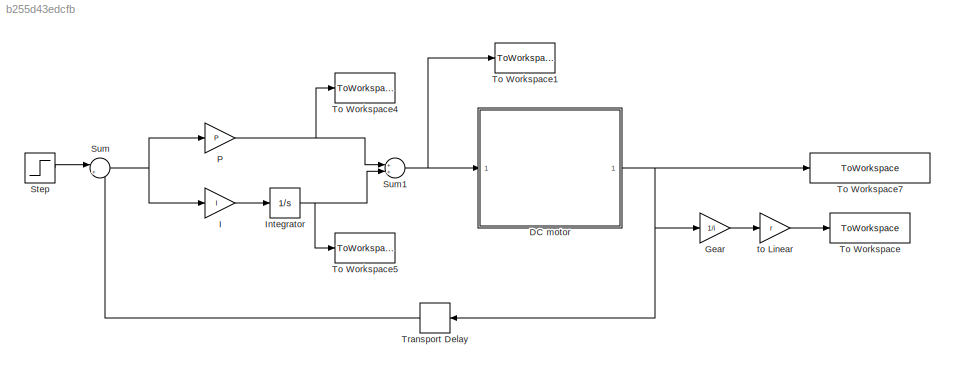
MODEL slx_b255d43edcfb
KIND model
CONFIG AbsTol = auto
CONFIG FixedStep = auto
CONFIG MaxStep = 0.001
CONFIG MinStep = auto
CONFIG RelTol = 1e-3
CONFIG SampleTimeConstraint = Unconstrained
CONFIG Solver = ode45
CONFIG SolverMode = Auto
CONFIG SolverName = ode45
CONFIG StartTime = 0.0
CONFIG StopTime = Maxt
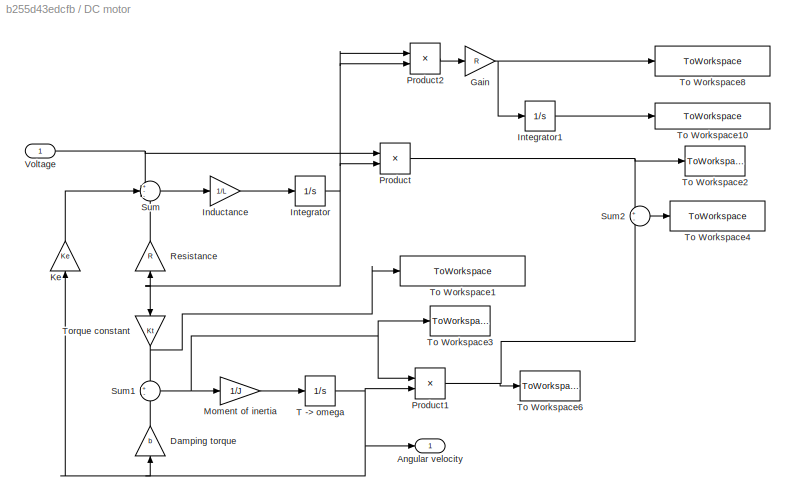
BLOCK [SubSystem] DC motor
  Ports = [1, 1]
  RequestExecContextInheritance = off
BLOCK [Outport] DC motor/Angular velocity
  IconDisplay = Port number
BLOCK [Gain] DC motor/Damping torque
  Gain = b
  OutDataTypeStr = Inherit: Inherit via internal rule
  ParamDataTypeStr = Inherit: Inherit via internal rule
  SaturateOnIntegerOverflow = off
BLOCK [Gain] DC motor/Gain
  Gain = R
  OutDataTypeStr = Inherit: Inherit via internal rule
  ParamDataTypeStr = Inherit: Inherit via internal rule
  SaturateOnIntegerOverflow = off
BLOCK [Gain] DC motor/Inductance
  Gain = 1/L
  OutDataTypeStr = Inherit: Inherit via internal rule
  ParamDataTypeStr = Inherit: Inherit via internal rule
  SaturateOnIntegerOverflow = off
BLOCK [Integrator] DC motor/Integrator
  Ports = [1, 1]
BLOCK [Integrator] DC motor/Integrator1
  Ports = [1, 1]
BLOCK [Gain] DC motor/Ke
  Gain = Ke
  OutDataTypeStr = Inherit: Inherit via internal rule
  ParamDataTypeStr = Inherit: Inherit via internal rule
  SaturateOnIntegerOverflow = off
BLOCK [Gain] DC motor/Moment of inertia
  Gain = 1/J
  OutDataTypeStr = Inherit: Inherit via internal rule
  ParamDataTypeStr = Inherit: Inherit via internal rule
  SaturateOnIntegerOverflow = off
BLOCK [Product] DC motor/Product
  InputSameDT = off
  OutDataTypeStr = Inherit: Inherit via internal rule
  Ports = [2, 1]
  RndMeth = Floor
  SaturateOnIntegerOverflow = off
BLOCK [Product] DC motor/Product1
  InputSameDT = off
  OutDataTypeStr = Inherit: Inherit via internal rule
  Ports = [2, 1]
  RndMeth = Floor
  SaturateOnIntegerOverflow = off
BLOCK [Product] DC motor/Product2
  InputSameDT = off
  OutDataTypeStr = Inherit: Inherit via internal rule
  Ports = [2, 1]
  RndMeth = Floor
  SaturateOnIntegerOverflow = off
BLOCK [Gain] DC motor/Resistance
  Gain = R
  OutDataTypeStr = Inherit: Inherit via internal rule
  ParamDataTypeStr = Inherit: Inherit via internal rule
  SaturateOnIntegerOverflow = off
BLOCK [Sum] DC motor/Sum
  IconShape = round
  InputSameDT = off
  Inputs = +--
  OutDataTypeStr = Inherit: Inherit via internal rule
  Ports = [3, 1]
  SaturateOnIntegerOverflow = off
BLOCK [Sum] DC motor/Sum1
  IconShape = round
  InputSameDT = off
  Inputs = +-
  OutDataTypeStr = Inherit: Inherit via internal rule
  Ports = [2, 1]
  SaturateOnIntegerOverflow = off
BLOCK [Sum] DC motor/Sum2
  IconShape = round
  InputSameDT = off
  Inputs = +-
  OutDataTypeStr = Inherit: Inherit via internal rule
  Ports = [2, 1]
  SaturateOnIntegerOverflow = off
BLOCK [Integrator] DC motor/T -> omega
  Ports = [1, 1]
BLOCK [ToWorkspace] DC motor/To Workspace1
  FixptAsFi = on
  MaxDataPoints = inf
  Ports = [1]
  SampleTime = -1
  Save2DSignal = 3-D array (concatenate along third dimension)
  SaveFormat = Timeseries
  VariableName = torque_electromagnetic
BLOCK [ToWorkspace] DC motor/To Workspace10
  FixptAsFi = on
  MaxDataPoints = inf
  Ports = [1]
  SampleTime = -1
  Save2DSignal = 3-D array (concatenate along third dimension)
  SaveFormat = Timeseries
  VariableName = resistive_loss_energy
BLOCK [ToWorkspace] DC motor/To Workspace2
  FixptAsFi = on
  MaxDataPoints = inf
  Ports = [1]
  SampleTime = -1
  Save2DSignal = 3-D array (concatenate along third dimension)
  SaveFormat = Timeseries
  VariableName = power_in
BLOCK [ToWorkspace] DC motor/To Workspace3
  FixptAsFi = on
  MaxDataPoints = inf
  Ports = [1]
  SampleTime = -1
  Save2DSignal = 3-D array (concatenate along third dimension)
  SaveFormat = Timeseries
  VariableName = torque_out
BLOCK [ToWorkspace] DC motor/To Workspace4
  FixptAsFi = on
  MaxDataPoints = inf
  Ports = [1]
  SampleTime = -1
  Save2DSignal = 3-D array (concatenate along third dimension)
  SaveFormat = Timeseries
  VariableName = total_loss_power
BLOCK [ToWorkspace] DC motor/To Workspace6
  FixptAsFi = on
  MaxDataPoints = inf
  Ports = [1]
  SampleTime = -1
  Save2DSignal = 3-D array (concatenate along third dimension)
  SaveFormat = Timeseries
  VariableName = power_out
BLOCK [ToWorkspace] DC motor/To Workspace8
  FixptAsFi = on
  MaxDataPoints = inf
  Ports = [1]
  SampleTime = -1
  Save2DSignal = 3-D array (concatenate along third dimension)
  SaveFormat = Timeseries
  VariableName = resistive_loss_power
BLOCK [Gain] DC motor/Torque constant
  Gain = Kt
  OutDataTypeStr = Inherit: Inherit via internal rule
  ParamDataTypeStr = Inherit: Inherit via internal rule
  SaturateOnIntegerOverflow = off
BLOCK [Inport] DC motor/Voltage
  IconDisplay = Port number
BLOCK [Gain] Gear
  Gain = 1/i
  OutDataTypeStr = Inherit: Inherit via internal rule
  ParamDataTypeStr = Inherit: Inherit via internal rule
  SaturateOnIntegerOverflow = off
BLOCK [Gain] I
  Gain = I
  OutDataTypeStr = Inherit: Inherit via internal rule
  ParamDataTypeStr = Inherit: Inherit via internal rule
  SaturateOnIntegerOverflow = off
BLOCK [Integrator] Integrator
  Ports = [1, 1]
BLOCK [Gain] P
  Gain = P
  OutDataTypeStr = Inherit: Inherit via internal rule
  ParamDataTypeStr = Inherit: Inherit via internal rule
  SaturateOnIntegerOverflow = off
BLOCK [Step] Step
  After = target_angular_velocity
  SampleTime = 0
  Time = 0
BLOCK [Sum] Sum
  IconShape = round
  InputSameDT = off
  Inputs = |+-
  OutDataTypeStr = Inherit: Inherit via internal rule
  Ports = [2, 1]
  SaturateOnIntegerOverflow = off
BLOCK [Sum] Sum1
  InputSameDT = off
  OutDataTypeStr = Inherit: Inherit via internal rule
  Ports = [2, 1]
  SaturateOnIntegerOverflow = off
BLOCK [ToWorkspace] To Workspace
  FixptAsFi = on
  MaxDataPoints = inf
  Ports = [1]
  SampleTime = -1
  Save2DSignal = 3-D array (concatenate along third dimension)
  SaveFormat = Timeseries
  VariableName = mass_velocity
BLOCK [ToWorkspace] To Workspace1
  FixptAsFi = on
  MaxDataPoints = inf
  Ports = [1]
  SampleTime = -1
  Save2DSignal = 3-D array (concatenate along third dimension)
  SaveFormat = Timeseries
  VariableName = control
BLOCK [ToWorkspace] To Workspace4
  FixptAsFi = on
  MaxDataPoints = inf
  Ports = [1]
  SampleTime = -1
  Save2DSignal = 3-D array (concatenate along third dimension)
  SaveFormat = Timeseries
  VariableName = proportional
BLOCK [ToWorkspace] To Workspace5
  FixptAsFi = on
  MaxDataPoints = inf
  Ports = [1]
  SampleTime = -1
  Save2DSignal = 3-D array (concatenate along third dimension)
  SaveFormat = Timeseries
  VariableName = integral
BLOCK [ToWorkspace] To Workspace7
  FixptAsFi = on
  MaxDataPoints = inf
  Ports = [1]
  SampleTime = -1
  Save2DSignal = 3-D array (concatenate along third dimension)
  SaveFormat = Timeseries
  VariableName = motor_angular_velocity
BLOCK [TransportDelay] Transport Delay
  DelayTime = delay
  Ports = [1, 1]
BLOCK [Gain] to Linear
  Gain = r
  OutDataTypeStr = Inherit: Inherit via internal rule
  ParamDataTypeStr = Inherit: Inherit via internal rule
  SaturateOnIntegerOverflow = off
LINE DC motor/Damping torque:1 -> DC motor/Sum1:2
NET DC motor/Gain:1 -> DC motor/Integrator1:1, DC motor/To Workspace8:1
LINE DC motor/Inductance:1 -> DC motor/Integrator:1
LINE DC motor/Integrator1:1 -> DC motor/To Workspace10:1
NET DC motor/Integrator:1 -> DC motor/Product2:1, DC motor/Product2:2, DC motor/Product:2, DC motor/Resistance:1, DC motor/Torque constant:1
LINE DC motor/Ke:1 -> DC motor/Sum:2
LINE DC motor/Moment of inertia:1 -> DC motor/T -> omega:1
NET DC motor/Product1:1 -> DC motor/Sum2:2, DC motor/To Workspace6:1
LINE DC motor/Product2:1 -> DC motor/Gain:1
NET DC motor/Product:1 -> DC motor/Sum2:1, DC motor/To Workspace2:1
LINE DC motor/Resistance:1 -> DC motor/Sum:3
NET DC motor/Sum1:1 -> DC motor/Moment of inertia:1, DC motor/Product1:1, DC motor/To Workspace3:1
LINE DC motor/Sum2:1 -> DC motor/To Workspace4:1
LINE DC motor/Sum:1 -> DC motor/Inductance:1
NET DC motor/T -> omega:1 -> DC motor/Angular velocity:1, DC motor/Damping torque:1, DC motor/Ke:1, DC motor/Product1:2
NET DC motor/Torque constant:1 -> DC motor/Sum1:1, DC motor/To Workspace1:1
NET DC motor/Voltage:1 -> DC motor/Product:1, DC motor/Sum:1
NET DC motor:1 -> Gear:1, To Workspace7:1, Transport Delay:1
LINE Gear:1 -> to Linear:1
LINE I:1 -> Integrator:1
NET Integrator:1 -> Sum1:2, To Workspace5:1
NET P:1 -> Sum1:1, To Workspace4:1
LINE Step:1 -> Sum:1
NET Sum1:1 -> DC motor:1, To Workspace1:1
NET Sum:1 -> I:1, P:1
LINE Transport Delay:1 -> Sum:2
LINE to Linear:1 -> To Workspace:1
note: NET lines group one-source signal fan-out (src -> all destinations, sorted); 1:1 wires keep LINE
